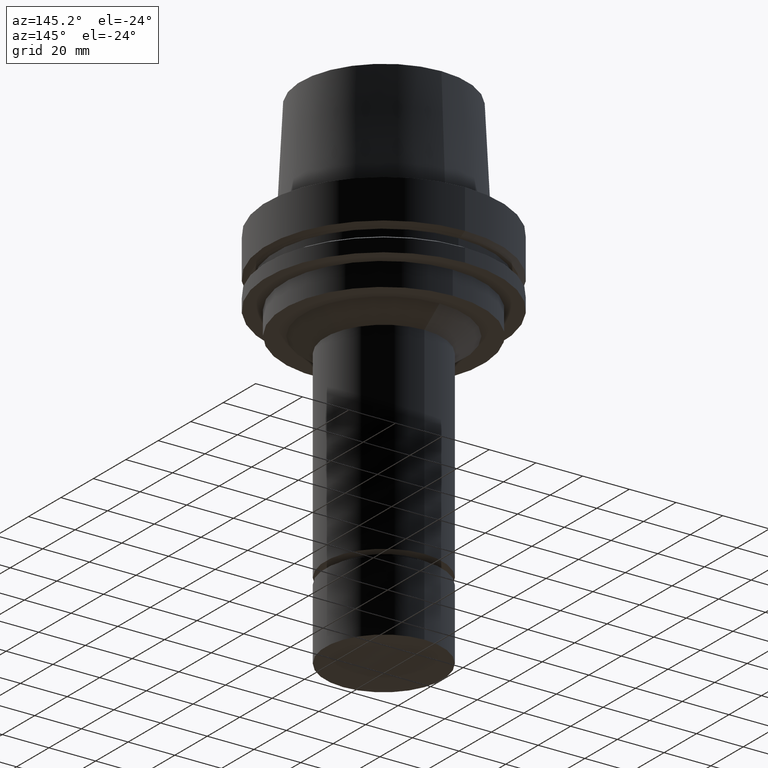
[diagram: clean part render]
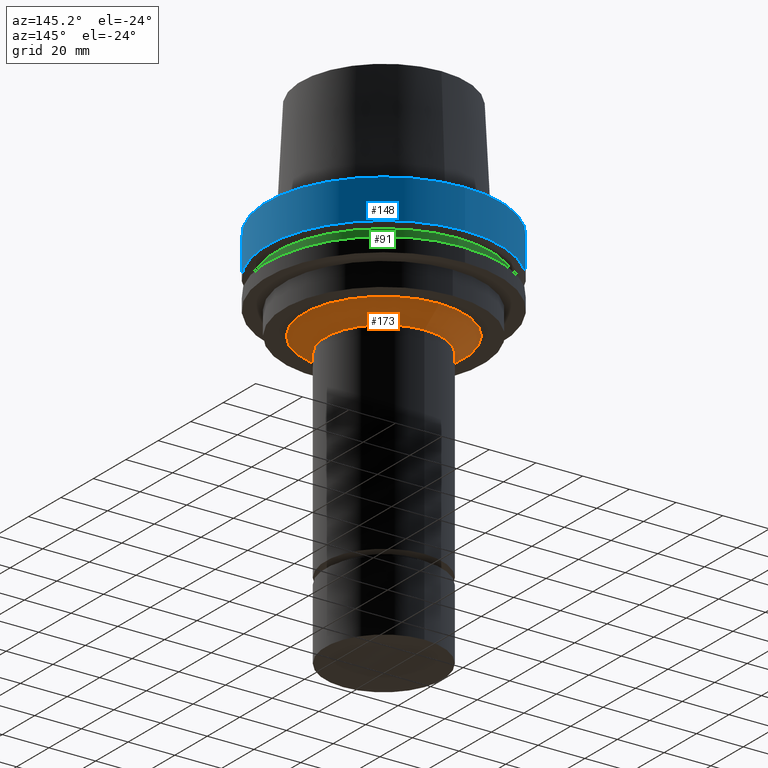
[diagram: same view with three faces highlighted in distinct colors, each labeled with its STEP entity id]
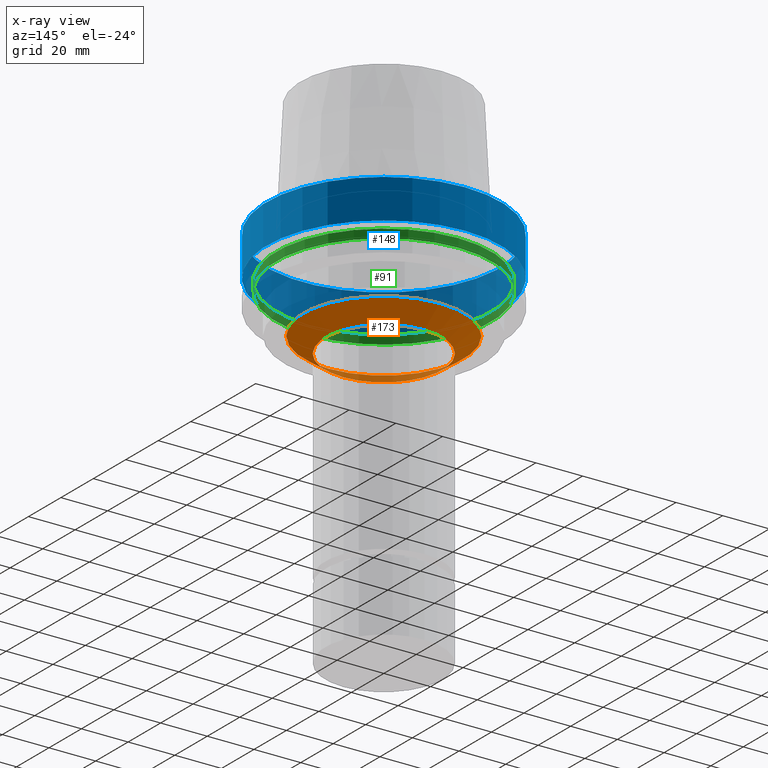
[diagram: x-ray of the same camera — body ghosted, the three highlighted faces saturated]
A machine part, auxiliary view with three faces highlighted in distinct colors.
The next image is the same camera in x-ray (body ghosted, the three faces saturated) — at least one of them is partly hidden behind the body in this view.
Their STEP definitions:

[orange] entity #173 — the highlighted conical surface has half-angle 54.025 deg.
#130=EDGE_CURVE('Unnamed[1]',#298,#298,#299,.T.);
#152=EDGE_CURVE('Unnamed[1]',#331,#331,#332,.T.);
#173=ADVANCED_FACE('Unnamed[1]',(#364,#365),#366,.T.);
#298=VERTEX_POINT('',#517);
#299=CIRCLE('',#518,25.0);
#331=VERTEX_POINT('',#558);
#332=CIRCLE('',#559,34.3193294456171);
#364=FACE_BOUND('',#599,.T.);
#365=FACE_BOUND('',#600,.T.);
#366=CONICAL_SURFACE('',#601,29.6596647228086,0.942916776538398);
#517=CARTESIAN_POINT('',(2.80227603553221E-015,25.0,-45.76464067));
#518=AXIS2_PLACEMENT_3D('',#737,#738,#739);
#558=CARTESIAN_POINT('',(2.38806125833734E-015,34.3193294456171,-39.0));
#559=AXIS2_PLACEMENT_3D('',#776,#777,#778);
#599=EDGE_LOOP('',(#813));
#600=EDGE_LOOP('',(#814));
#601=AXIS2_PLACEMENT_3D('',#815,#816,#817);
#737=CARTESIAN_POINT('',(2.80227603553221E-015,5.60455207106442E-015,-45.76464067));
#738=DIRECTION('',(6.12323399573677E-017,1.22464679914735E-016,-1.0));
#739=DIRECTION('',(-1.23259516440783E-032,1.0,1.22464679914735E-016));
#776=CARTESIAN_POINT('',(2.38806125833734E-015,4.77612251667468E-015,-39.0));
#777=DIRECTION('',(6.12323399573677E-017,1.22464679914735E-016,-1.0));
#778=DIRECTION('',(-1.23259516440783E-032,1.0,1.22464679914735E-016));
#813=ORIENTED_EDGE('',*,*,#130,.F.);
#814=ORIENTED_EDGE('',*,*,#152,.T.);
#815=CARTESIAN_POINT('',(2.59516864693478E-015,5.19033729386955E-015,-42.382320335));
#816=DIRECTION('',(-6.12323399573677E-017,-1.22464679914735E-016,1.0));
#817=DIRECTION('',(-1.23259516440783E-032,1.0,1.22464679914735E-016));

[blue] entity #148 — the highlighted cylindrical surface (bore or boss wall) has radius 50 mm, axis along (0, 0, -1).
#99=EDGE_CURVE('Unnamed[1]',#249,#249,#250,.T.);
#148=ADVANCED_FACE('Unnamed[1]',(#324,#325),#326,.T.);
#150=EDGE_CURVE('Unnamed[1]',#328,#328,#329,.T.);
#249=VERTEX_POINT('',#455);
#250=CIRCLE('',#456,50.0);
#324=FACE_BOUND('',#549,.T.);
#325=FACE_BOUND('',#550,.T.);
#326=CYLINDRICAL_SURFACE('',#551,50.0);
#328=VERTEX_POINT('',#554);
#329=CIRCLE('',#555,50.0);
#455=CARTESIAN_POINT('',(1.0257889421431E-015,50.0,-16.75240474));
#456=AXIS2_PLACEMENT_3D('',#683,#684,#685);
#549=EDGE_LOOP('',(#768));
#550=EDGE_LOOP('',(#769));
#551=AXIS2_PLACEMENT_3D('',#770,#771,#772);
#554=CARTESIAN_POINT('',(-1.81547968506605E-031,50.0,-9.76766004263236E-016));
#555=AXIS2_PLACEMENT_3D('',#773,#774,#775);
#683=CARTESIAN_POINT('',(1.0257889421431E-015,2.05157788428619E-015,-16.75240474));
#684=DIRECTION('',(6.12323399573677E-017,1.22464679914735E-016,-1.0));
#685=DIRECTION('',(-1.23259516440783E-032,1.0,1.22464679914735E-016));
#768=ORIENTED_EDGE('',*,*,#99,.F.);
#769=ORIENTED_EDGE('',*,*,#150,.T.);
#770=CARTESIAN_POINT('',(5.12894471071548E-016,1.0257889421431E-015,-8.37620236999999));
#771=DIRECTION('',(6.12323399573677E-017,1.22464679914735E-016,-1.0));
#772=DIRECTION('',(-1.23259516440783E-032,1.0,1.22464679914735E-016));
#773=CARTESIAN_POINT('',(0.0,0.0,0.0));
#774=DIRECTION('',(6.12323399573677E-017,1.22464679914735E-016,-1.0));
#775=DIRECTION('',(-1.23259516440783E-032,1.0,1.22464679914735E-016));

[green] entity #91 — the highlighted cylindrical surface (bore or boss wall) has radius 46 mm, axis along (0, 0, -1).
#88=EDGE_CURVE('Unnamed[1]',#233,#233,#234,.T.);
#91=ADVANCED_FACE('Unnamed[1]',(#237,#238),#239,.T.);
#178=EDGE_CURVE('Unnamed[1]',#372,#372,#373,.T.);
#233=VERTEX_POINT('',#436);
#234=CIRCLE('',#437,46.0);
#237=FACE_BOUND('',#441,.T.);
#238=FACE_BOUND('',#442,.T.);
#239=CYLINDRICAL_SURFACE('',#443,46.0);
#372=VERTEX_POINT('',#609);
#373=CIRCLE('',#610,46.0);
#436=CARTESIAN_POINT('',(1.10983616172729E-015,46.0,-18.125));
#437=AXIS2_PLACEMENT_3D('',#667,#668,#669);
#441=EDGE_LOOP('',(#671));
#442=EDGE_LOOP('',(#672));
#443=AXIS2_PLACEMENT_3D('',#673,#674,#675);
#609=CARTESIAN_POINT('',(1.33945743656742E-015,46.0,-21.875));
#610=AXIS2_PLACEMENT_3D('',#823,#824,#825);
#667=CARTESIAN_POINT('',(1.10983616172729E-015,2.21967232345458E-015,-18.125));
#668=DIRECTION('',(6.12323399573677E-017,1.22464679914735E-016,-1.0));
#669=DIRECTION('',(-1.23259516440783E-032,1.0,1.22464679914735E-016));
#671=ORIENTED_EDGE('',*,*,#178,.F.);
#672=ORIENTED_EDGE('',*,*,#88,.T.);
#673=CARTESIAN_POINT('',(1.22464679914735E-015,2.44929359829471E-015,-20.0));
#674=DIRECTION('',(6.12323399573677E-017,1.22464679914735E-016,-1.0));
#675=DIRECTION('',(-1.23259516440783E-032,1.0,1.22464679914735E-016));
#823=CARTESIAN_POINT('',(1.33945743656742E-015,2.67891487313483E-015,-21.875));
#824=DIRECTION('',(6.12323399573677E-017,1.22464679914735E-016,-1.0));
#825=DIRECTION('',(-1.23259516440783E-032,1.0,1.22464679914735E-016));